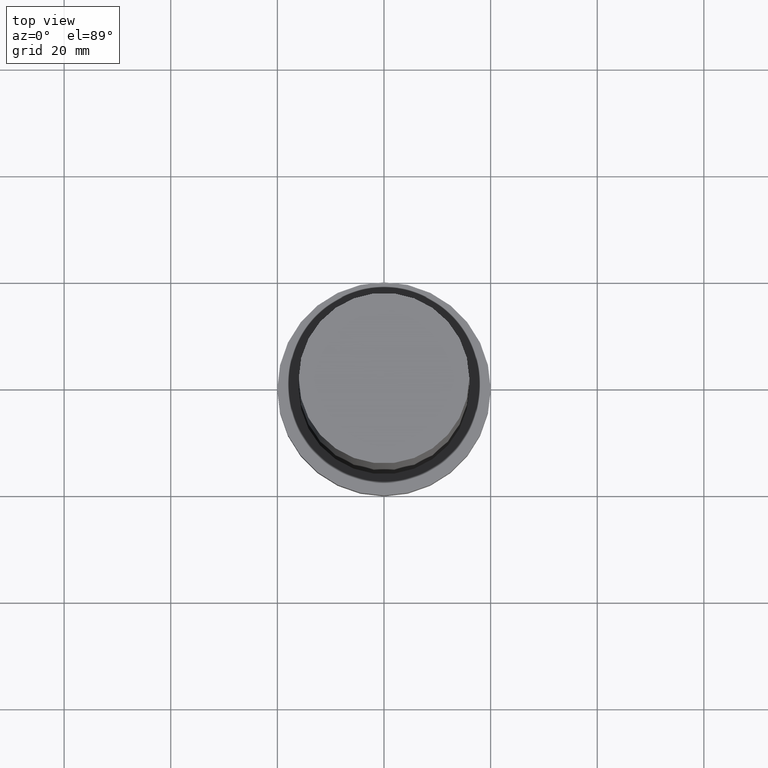
[diagram: clean part render]
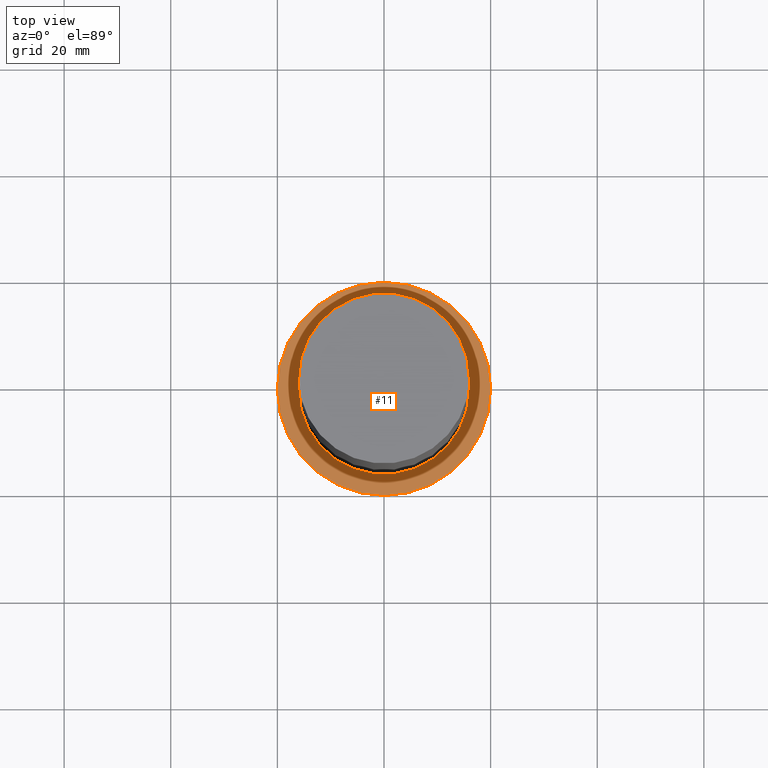
[diagram: same view with one face highlighted and labeled with its STEP entity id]
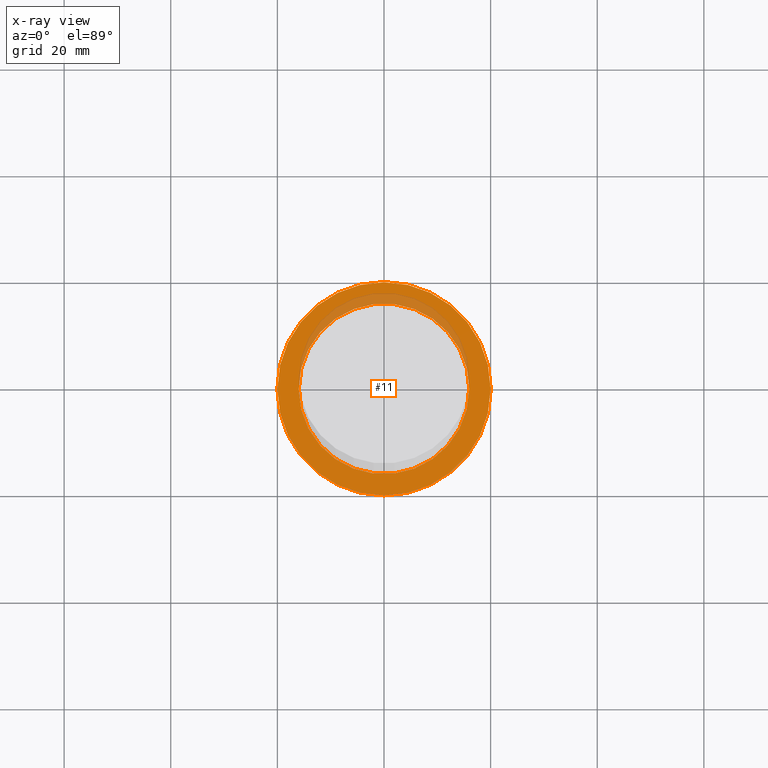
[diagram: x-ray of the same camera — body ghosted, the highlighted face saturated]
A machine part, top view. The second image highlights one B-rep face of the part: STEP entity #11.
The next image is the same camera in x-ray: the body ghosted, the highlighted face saturated — about 14% of this face is hidden behind the body in this view.
In plain terms, the highlighted planar face has unit normal (0, 0, 1).
Its self-contained STEP definition (entity closure, byte-faithful):
#5 = VERTEX_POINT ( 'NONE', #142 ) ;
#11 = ADVANCED_FACE ( 'NONE', ( #118, #165 ), #248, .T. ) ;
#14 = DIRECTION ( 'NONE',  ( 1.000000000000000000, 0.000000000000000000, 0.000000000000000000 ) ) ;
#40 = AXIS2_PLACEMENT_3D ( 'NONE', #126, #107, #213 ) ;
#43 = VERTEX_POINT ( 'NONE', #208 ) ;
#46 = AXIS2_PLACEMENT_3D ( 'NONE', #249, #48, #146 ) ;
#48 = DIRECTION ( 'NONE',  ( 0.000000000000000000, 0.000000000000000000, 1.000000000000000000 ) ) ;
#54 = EDGE_LOOP ( 'NONE', ( #160, #59 ) ) ;
#59 = ORIENTED_EDGE ( 'NONE', *, *, #237, .T. ) ;
#66 = DIRECTION ( 'NONE',  ( 1.000000000000000000, 0.000000000000000000, 0.000000000000000000 ) ) ;
#78 = CARTESIAN_POINT ( 'NONE',  ( 0.000000000000000000, 0.000000000000000000, 10.00000000000000000 ) ) ;
#82 = CARTESIAN_POINT ( 'NONE',  ( 16.00000000000000000, 1.959434878635765131E-15, 10.00000000000000000 ) ) ;
#94 = CIRCLE ( 'NONE', #40, 16.00000000000000000 ) ;
#107 = DIRECTION ( 'NONE',  ( 0.000000000000000000, 0.000000000000000000, 1.000000000000000000 ) ) ;
#118 = FACE_BOUND ( 'NONE', #222, .T. ) ;
#120 = DIRECTION ( 'NONE',  ( 1.000000000000000000, 0.000000000000000000, -0.000000000000000000 ) ) ;
#126 = CARTESIAN_POINT ( 'NONE',  ( 0.000000000000000000, 0.000000000000000000, 10.00000000000000000 ) ) ;
#128 = AXIS2_PLACEMENT_3D ( 'NONE', #144, #228, #120 ) ;
#132 = CIRCLE ( 'NONE', #170, 20.00000000000000000 ) ;
#133 = ORIENTED_EDGE ( 'NONE', *, *, #198, .F. ) ;
#137 = CIRCLE ( 'NONE', #46, 16.00000000000000000 ) ;
#142 = CARTESIAN_POINT ( 'NONE',  ( 20.00000000000000000, 2.449293598294706513E-15, 10.00000000000000000 ) ) ;
#144 = CARTESIAN_POINT ( 'NONE',  ( 0.000000000000000000, 0.000000000000000000, 10.00000000000000000 ) ) ;
#146 = DIRECTION ( 'NONE',  ( 1.000000000000000000, 0.000000000000000000, 0.000000000000000000 ) ) ;
#160 = ORIENTED_EDGE ( 'NONE', *, *, #242, .T. ) ;
#165 = FACE_OUTER_BOUND ( 'NONE', #54, .T. ) ;
#168 = DIRECTION ( 'NONE',  ( 0.000000000000000000, 0.000000000000000000, 1.000000000000000000 ) ) ;
#170 = AXIS2_PLACEMENT_3D ( 'NONE', #78, #173, #66 ) ;
#173 = DIRECTION ( 'NONE',  ( 0.000000000000000000, 0.000000000000000000, 1.000000000000000000 ) ) ;
#182 = ORIENTED_EDGE ( 'NONE', *, *, #235, .F. ) ;
#197 = CARTESIAN_POINT ( 'NONE',  ( 0.000000000000000000, 0.000000000000000000, 10.00000000000000000 ) ) ;
#198 = EDGE_CURVE ( 'NONE', #241, #227, #137, .T. ) ;
#200 = AXIS2_PLACEMENT_3D ( 'NONE', #197, #168, #14 ) ;
#208 = CARTESIAN_POINT ( 'NONE',  ( -20.00000000000000000, 0.000000000000000000, 10.00000000000000000 ) ) ;
#213 = DIRECTION ( 'NONE',  ( 1.000000000000000000, 0.000000000000000000, 0.000000000000000000 ) ) ;
#214 = CARTESIAN_POINT ( 'NONE',  ( -16.00000000000000000, 0.000000000000000000, 10.00000000000000000 ) ) ;
#222 = EDGE_LOOP ( 'NONE', ( #182, #133 ) ) ;
#227 = VERTEX_POINT ( 'NONE', #214 ) ;
#228 = DIRECTION ( 'NONE',  ( 0.000000000000000000, 0.000000000000000000, 1.000000000000000000 ) ) ;
#235 = EDGE_CURVE ( 'NONE', #227, #241, #94, .T. ) ;
#237 = EDGE_CURVE ( 'NONE', #5, #43, #253, .T. ) ;
#241 = VERTEX_POINT ( 'NONE', #82 ) ;
#242 = EDGE_CURVE ( 'NONE', #43, #5, #132, .T. ) ;
#248 = PLANE ( 'NONE',  #128 ) ;
#249 = CARTESIAN_POINT ( 'NONE',  ( 0.000000000000000000, 0.000000000000000000, 10.00000000000000000 ) ) ;
#253 = CIRCLE ( 'NONE', #200, 20.00000000000000000 ) ;